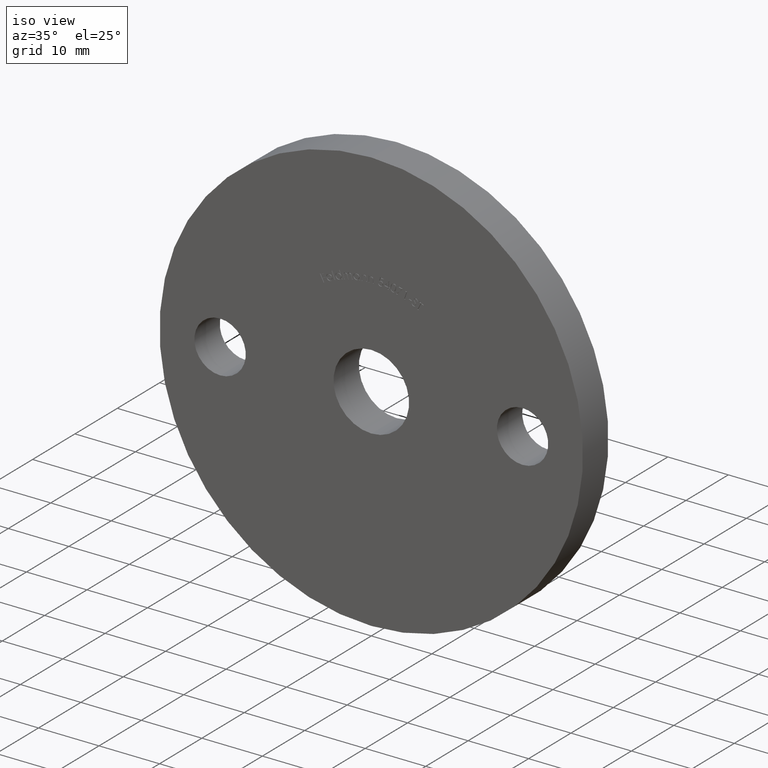
[diagram: clean part render]
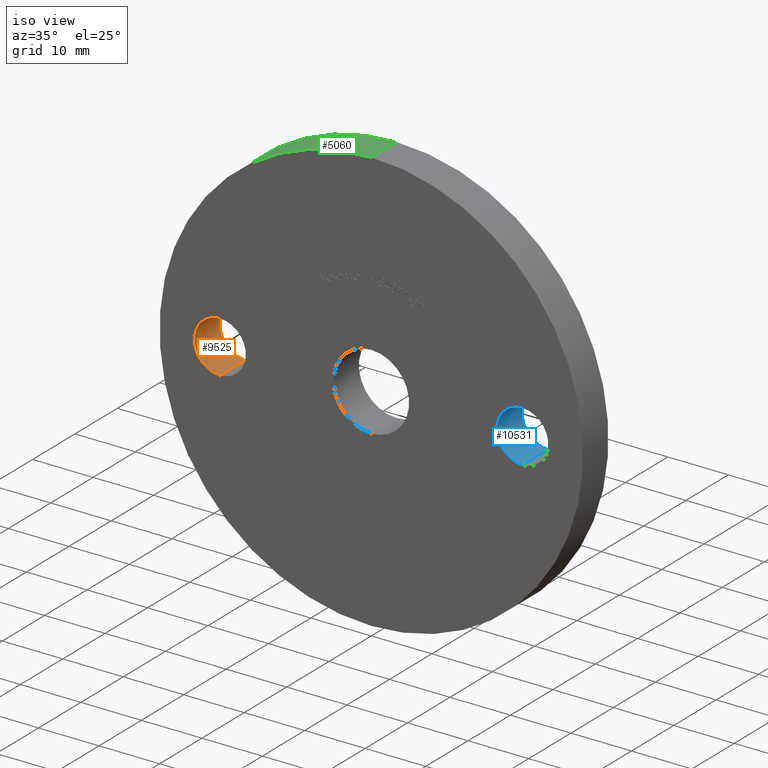
[diagram: same view with three faces highlighted in distinct colors, each labeled with its STEP entity id]
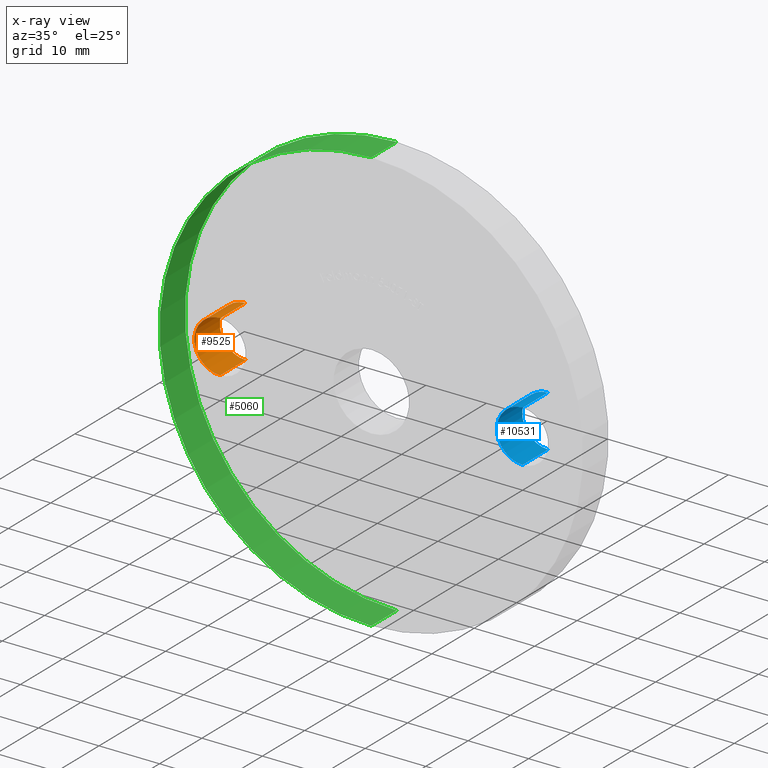
[diagram: x-ray of the same camera — body ghosted, the three highlighted faces saturated]
A machine part, iso view with three faces highlighted in distinct colors.
The next image is the same camera in x-ray (body ghosted, the three faces saturated) — at least one of them is partly hidden behind the body in this view.
Their STEP definitions:

[orange] entity #9525 — the highlighted cylindrical surface (edge-blend (fillet) strip) has radius 4.25 mm, axis along (-0, 1, -0).
#271 = VECTOR ( 'NONE', #3381, 1000.000000000000000 ) ;
#444 = ORIENTED_EDGE ( 'NONE', *, *, #3385, .F. ) ;
#744 = CIRCLE ( 'NONE', #1357, 4.249999999999998200 ) ;
#748 = ORIENTED_EDGE ( 'NONE', *, *, #9885, .F. ) ;
#935 = VERTEX_POINT ( 'NONE', #3068 ) ;
#1054 = ORIENTED_EDGE ( 'NONE', *, *, #6067, .T. ) ;
#1353 = EDGE_LOOP ( 'NONE', ( #444, #1054, #3238, #748 ) ) ;
#1357 = AXIS2_PLACEMENT_3D ( 'NONE', #2363, #7361, #9049 ) ;
#1822 = FACE_OUTER_BOUND ( 'NONE', #1353, .T. ) ;
#1861 = VECTOR ( 'NONE', #5757, 1000.000000000000000 ) ;
#1938 = CARTESIAN_POINT ( 'NONE',  ( -25.00000000000000000, 6.000000000000000000, 4.249999999999998200 ) ) ;
#2269 = LINE ( 'NONE', #9144, #1861 ) ;
#2363 = CARTESIAN_POINT ( 'NONE',  ( -25.00000000000000000, 0.0000000000000000000, 0.0000000000000000000 ) ) ;
#2610 = DIRECTION ( 'NONE',  ( 0.0000000000000000000, 1.000000000000000000, 0.0000000000000000000 ) ) ;
#3068 = CARTESIAN_POINT ( 'NONE',  ( -25.00000000000000000, 0.0000000000000000000, -4.249999999999998200 ) ) ;
#3110 = AXIS2_PLACEMENT_3D ( 'NONE', #7554, #2610, #10072 ) ;
#3238 = ORIENTED_EDGE ( 'NONE', *, *, #8379, .T. ) ;
#3381 = DIRECTION ( 'NONE',  ( -0.0000000000000000000, 1.000000000000000000, -0.0000000000000000000 ) ) ;
#3385 = EDGE_CURVE ( 'NONE', #935, #8836, #744, .T. ) ;
#4654 = LINE ( 'NONE', #7175, #271 ) ;
#4980 = AXIS2_PLACEMENT_3D ( 'NONE', #9074, #5861, #9173 ) ;
#5216 = VERTEX_POINT ( 'NONE', #8441 ) ;
#5757 = DIRECTION ( 'NONE',  ( -0.0000000000000000000, 1.000000000000000000, -0.0000000000000000000 ) ) ;
#5799 = CYLINDRICAL_SURFACE ( 'NONE', #4980, 4.249999999999998200 ) ;
#5861 = DIRECTION ( 'NONE',  ( -0.0000000000000000000, 1.000000000000000000, -0.0000000000000000000 ) ) ;
#6067 = EDGE_CURVE ( 'NONE', #935, #5216, #2269, .T. ) ;
#7175 = CARTESIAN_POINT ( 'NONE',  ( -25.00000000000000000, 0.0000000000000000000, 4.249999999999998200 ) ) ;
#7361 = DIRECTION ( 'NONE',  ( 0.0000000000000000000, 1.000000000000000000, 0.0000000000000000000 ) ) ;
#7554 = CARTESIAN_POINT ( 'NONE',  ( -25.00000000000000000, 6.000000000000000000, 0.0000000000000000000 ) ) ;
#8379 = EDGE_CURVE ( 'NONE', #5216, #9656, #10612, .T. ) ;
#8441 = CARTESIAN_POINT ( 'NONE',  ( -25.00000000000000000, 6.000000000000000000, -4.249999999999998200 ) ) ;
#8836 = VERTEX_POINT ( 'NONE', #10185 ) ;
#9049 = DIRECTION ( 'NONE',  ( 0.0000000000000000000, 0.0000000000000000000, 1.000000000000000000 ) ) ;
#9074 = CARTESIAN_POINT ( 'NONE',  ( -25.00000000000000000, 0.0000000000000000000, 0.0000000000000000000 ) ) ;
#9144 = CARTESIAN_POINT ( 'NONE',  ( -25.00000000000000000, 0.0000000000000000000, -4.249999999999998200 ) ) ;
#9173 = DIRECTION ( 'NONE',  ( 0.0000000000000000000, 0.0000000000000000000, 1.000000000000000000 ) ) ;
#9525 = ADVANCED_FACE ( 'NONE', ( #1822 ), #5799, .F. ) ;
#9656 = VERTEX_POINT ( 'NONE', #1938 ) ;
#9885 = EDGE_CURVE ( 'NONE', #8836, #9656, #4654, .T. ) ;
#10072 = DIRECTION ( 'NONE',  ( 0.0000000000000000000, 0.0000000000000000000, 1.000000000000000000 ) ) ;
#10185 = CARTESIAN_POINT ( 'NONE',  ( -25.00000000000000000, 0.0000000000000000000, 4.249999999999998200 ) ) ;
#10612 = CIRCLE ( 'NONE', #3110, 4.249999999999998200 ) ;

[blue] entity #10531 — the highlighted cylindrical surface (edge-blend (fillet) strip) has radius 4.25 mm, axis along (-0, 1, -0).
#369 = DIRECTION ( 'NONE',  ( -0.0000000000000000000, 1.000000000000000000, -0.0000000000000000000 ) ) ;
#677 = AXIS2_PLACEMENT_3D ( 'NONE', #10610, #4730, #10503 ) ;
#684 = DIRECTION ( 'NONE',  ( -0.0000000000000000000, 1.000000000000000000, -0.0000000000000000000 ) ) ;
#884 = ORIENTED_EDGE ( 'NONE', *, *, #9440, .T. ) ;
#941 = DIRECTION ( 'NONE',  ( 0.0000000000000000000, 0.0000000000000000000, 1.000000000000000000 ) ) ;
#1640 = LINE ( 'NONE', #7816, #5361 ) ;
#1652 = AXIS2_PLACEMENT_3D ( 'NONE', #3415, #1783, #2555 ) ;
#1677 = CARTESIAN_POINT ( 'NONE',  ( 25.00000000000000000, 6.000000000000000000, -4.250000000000004400 ) ) ;
#1783 = DIRECTION ( 'NONE',  ( 0.0000000000000000000, 1.000000000000000000, 0.0000000000000000000 ) ) ;
#2193 = VERTEX_POINT ( 'NONE', #5542 ) ;
#2555 = DIRECTION ( 'NONE',  ( 0.0000000000000000000, 0.0000000000000000000, 1.000000000000000000 ) ) ;
#2611 = EDGE_CURVE ( 'NONE', #2698, #3899, #5901, .T. ) ;
#2698 = VERTEX_POINT ( 'NONE', #1677 ) ;
#2707 = AXIS2_PLACEMENT_3D ( 'NONE', #8272, #9141, #941 ) ;
#3230 = FACE_OUTER_BOUND ( 'NONE', #10663, .T. ) ;
#3415 = CARTESIAN_POINT ( 'NONE',  ( 25.00000000000000000, 6.000000000000000000, -6.123233995736766100E-015 ) ) ;
#3640 = CARTESIAN_POINT ( 'NONE',  ( 25.00000000000000000, 0.0000000000000000000, -4.250000000000004400 ) ) ;
#3899 = VERTEX_POINT ( 'NONE', #9615 ) ;
#4218 = EDGE_CURVE ( 'NONE', #2193, #3899, #1640, .T. ) ;
#4730 = DIRECTION ( 'NONE',  ( 0.0000000000000000000, 1.000000000000000000, 0.0000000000000000000 ) ) ;
#5211 = VERTEX_POINT ( 'NONE', #3640 ) ;
#5361 = VECTOR ( 'NONE', #369, 1000.000000000000000 ) ;
#5410 = CYLINDRICAL_SURFACE ( 'NONE', #2707, 4.249999999999998200 ) ;
#5428 = LINE ( 'NONE', #9821, #6326 ) ;
#5542 = CARTESIAN_POINT ( 'NONE',  ( 25.00000000000000000, 0.0000000000000000000, 4.249999999999992900 ) ) ;
#5604 = CIRCLE ( 'NONE', #677, 4.249999999999998200 ) ;
#5693 = EDGE_CURVE ( 'NONE', #5211, #2193, #5604, .T. ) ;
#5901 = CIRCLE ( 'NONE', #1652, 4.249999999999998200 ) ;
#6326 = VECTOR ( 'NONE', #684, 1000.000000000000000 ) ;
#6852 = ORIENTED_EDGE ( 'NONE', *, *, #2611, .T. ) ;
#7816 = CARTESIAN_POINT ( 'NONE',  ( 25.00000000000000000, 0.0000000000000000000, 4.249999999999992900 ) ) ;
#8272 = CARTESIAN_POINT ( 'NONE',  ( 25.00000000000000000, 0.0000000000000000000, -6.123233995736766100E-015 ) ) ;
#8294 = ORIENTED_EDGE ( 'NONE', *, *, #4218, .F. ) ;
#9141 = DIRECTION ( 'NONE',  ( -0.0000000000000000000, 1.000000000000000000, -0.0000000000000000000 ) ) ;
#9440 = EDGE_CURVE ( 'NONE', #5211, #2698, #5428, .T. ) ;
#9615 = CARTESIAN_POINT ( 'NONE',  ( 25.00000000000000000, 6.000000000000000000, 4.249999999999992900 ) ) ;
#9821 = CARTESIAN_POINT ( 'NONE',  ( 25.00000000000000000, 0.0000000000000000000, -4.250000000000004400 ) ) ;
#10496 = ORIENTED_EDGE ( 'NONE', *, *, #5693, .F. ) ;
#10503 = DIRECTION ( 'NONE',  ( 0.0000000000000000000, 0.0000000000000000000, 1.000000000000000000 ) ) ;
#10531 = ADVANCED_FACE ( 'NONE', ( #3230 ), #5410, .F. ) ;
#10610 = CARTESIAN_POINT ( 'NONE',  ( 25.00000000000000000, 0.0000000000000000000, -6.123233995736766100E-015 ) ) ;
#10663 = EDGE_LOOP ( 'NONE', ( #10496, #884, #6852, #8294 ) ) ;

[green] entity #5060 — the highlighted cylindrical surface (partial cylindrical patch) has radius 35 mm, axis along (-0, -1, -0).
#6 = CARTESIAN_POINT ( 'NONE',  ( 0.0000000000000000000, 6.000000000000000000, -35.00000000000000700 ) ) ;
#202 = VERTEX_POINT ( 'NONE', #8139 ) ;
#464 = CIRCLE ( 'NONE', #9944, 35.00000000000000700 ) ;
#937 = DIRECTION ( 'NONE',  ( 0.0000000000000000000, 0.0000000000000000000, -1.000000000000000000 ) ) ;
#1657 = CARTESIAN_POINT ( 'NONE',  ( 0.0000000000000000000, 6.000000000000000000, 0.0000000000000000000 ) ) ;
#1684 = DIRECTION ( 'NONE',  ( -0.0000000000000000000, -1.000000000000000000, -0.0000000000000000000 ) ) ;
#2014 = CARTESIAN_POINT ( 'NONE',  ( 4.286263797015737300E-015, 6.000000000000000000, 35.00000000000000700 ) ) ;
#2228 = DIRECTION ( 'NONE',  ( -0.0000000000000000000, -1.000000000000000000, -0.0000000000000000000 ) ) ;
#2266 = CARTESIAN_POINT ( 'NONE',  ( 0.0000000000000000000, 6.000000000000000000, -35.00000000000000700 ) ) ;
#2353 = EDGE_CURVE ( 'NONE', #5493, #8079, #6816, .T. ) ;
#3303 = CARTESIAN_POINT ( 'NONE',  ( 4.286263797015737300E-015, 0.0000000000000000000, 35.00000000000000700 ) ) ;
#4170 = EDGE_LOOP ( 'NONE', ( #8341, #9368, #6094, #8094 ) ) ;
#4220 = AXIS2_PLACEMENT_3D ( 'NONE', #1657, #1684, #937 ) ;
#4735 = AXIS2_PLACEMENT_3D ( 'NONE', #9520, #5106, #7016 ) ;
#4847 = EDGE_CURVE ( 'NONE', #10493, #202, #464, .T. ) ;
#5060 = ADVANCED_FACE ( 'NONE', ( #7037 ), #5350, .T. ) ;
#5106 = DIRECTION ( 'NONE',  ( 0.0000000000000000000, 1.000000000000000000, 0.0000000000000000000 ) ) ;
#5309 = EDGE_CURVE ( 'NONE', #10493, #5493, #8995, .T. ) ;
#5350 = CYLINDRICAL_SURFACE ( 'NONE', #4220, 35.00000000000000700 ) ;
#5430 = DIRECTION ( 'NONE',  ( -0.0000000000000000000, -1.000000000000000000, -0.0000000000000000000 ) ) ;
#5493 = VERTEX_POINT ( 'NONE', #9126 ) ;
#6094 = ORIENTED_EDGE ( 'NONE', *, *, #5309, .T. ) ;
#6224 = CARTESIAN_POINT ( 'NONE',  ( 0.0000000000000000000, 6.000000000000000000, 0.0000000000000000000 ) ) ;
#6452 = LINE ( 'NONE', #2014, #10579 ) ;
#6816 = CIRCLE ( 'NONE', #4735, 35.00000000000000700 ) ;
#7016 = DIRECTION ( 'NONE',  ( 0.0000000000000000000, 0.0000000000000000000, 1.000000000000000000 ) ) ;
#7037 = FACE_OUTER_BOUND ( 'NONE', #4170, .T. ) ;
#7423 = VECTOR ( 'NONE', #2228, 1000.000000000000000 ) ;
#7992 = DIRECTION ( 'NONE',  ( 0.0000000000000000000, 0.0000000000000000000, 1.000000000000000000 ) ) ;
#8023 = DIRECTION ( 'NONE',  ( 0.0000000000000000000, 1.000000000000000000, 0.0000000000000000000 ) ) ;
#8079 = VERTEX_POINT ( 'NONE', #3303 ) ;
#8094 = ORIENTED_EDGE ( 'NONE', *, *, #2353, .T. ) ;
#8139 = CARTESIAN_POINT ( 'NONE',  ( 4.286263797015737300E-015, 6.000000000000000000, 35.00000000000000700 ) ) ;
#8341 = ORIENTED_EDGE ( 'NONE', *, *, #10587, .F. ) ;
#8995 = LINE ( 'NONE', #2266, #7423 ) ;
#9126 = CARTESIAN_POINT ( 'NONE',  ( 0.0000000000000000000, 0.0000000000000000000, -35.00000000000000700 ) ) ;
#9368 = ORIENTED_EDGE ( 'NONE', *, *, #4847, .F. ) ;
#9520 = CARTESIAN_POINT ( 'NONE',  ( 0.0000000000000000000, 0.0000000000000000000, 0.0000000000000000000 ) ) ;
#9944 = AXIS2_PLACEMENT_3D ( 'NONE', #6224, #8023, #7992 ) ;
#10493 = VERTEX_POINT ( 'NONE', #6 ) ;
#10579 = VECTOR ( 'NONE', #5430, 1000.000000000000000 ) ;
#10587 = EDGE_CURVE ( 'NONE', #202, #8079, #6452, .T. ) ;